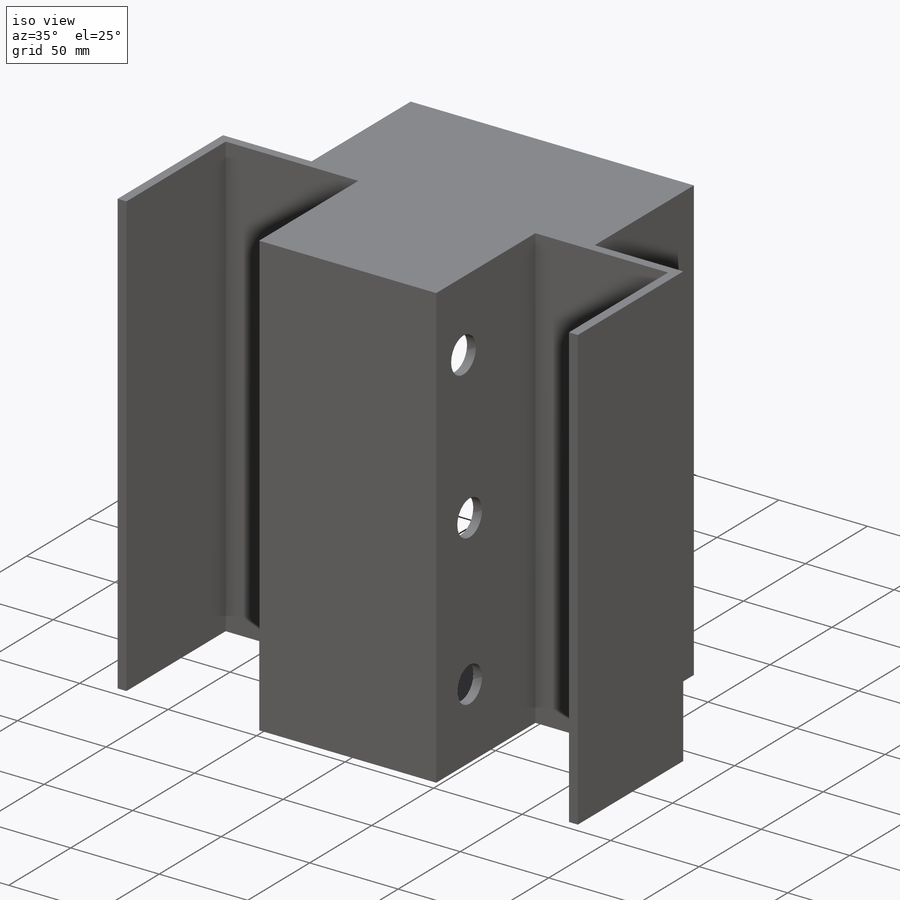
[diagram: iso view]
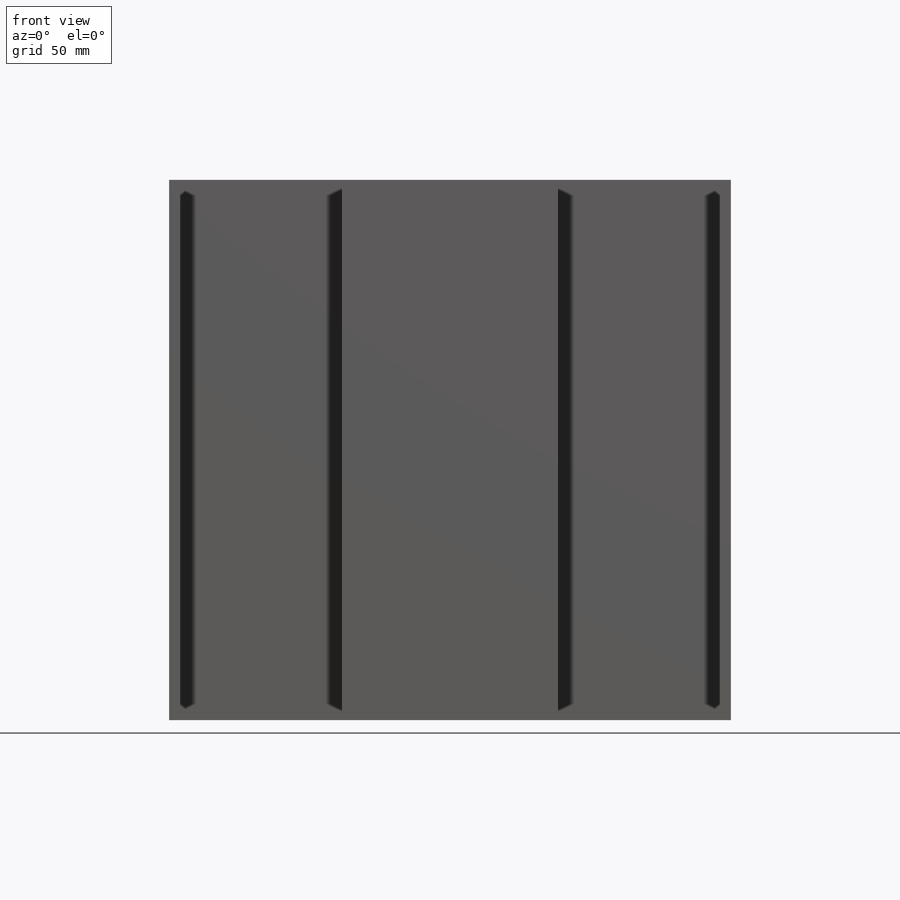
[diagram: front view]
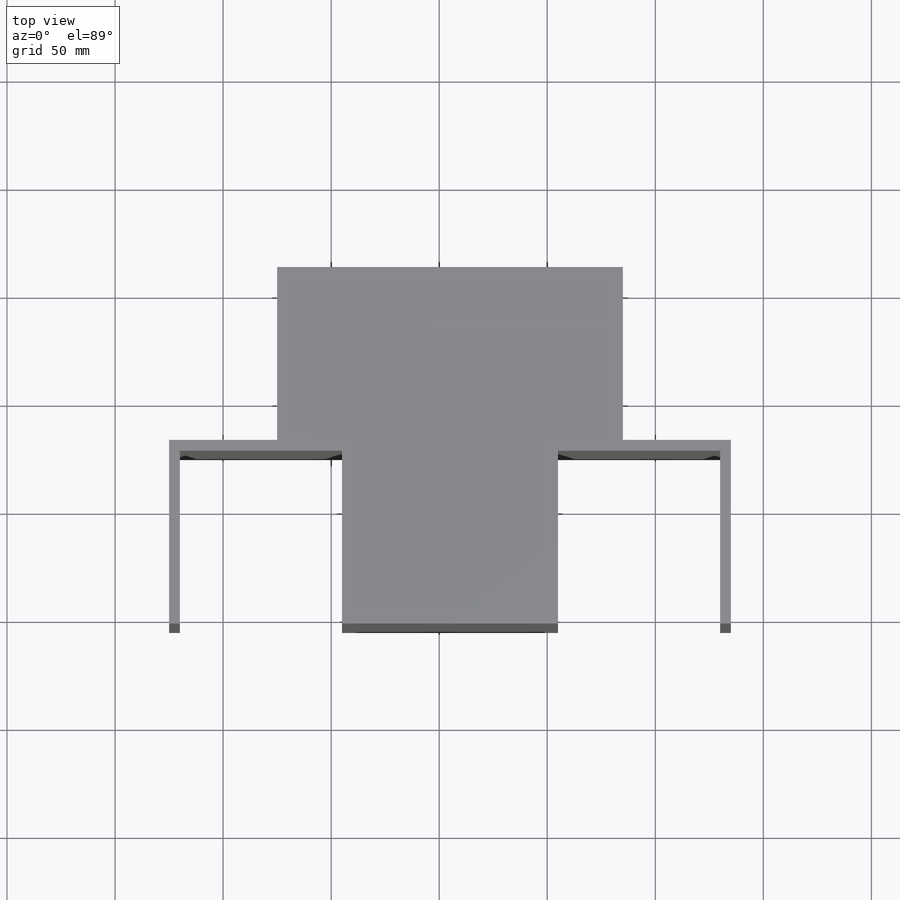
[diagram: top view]
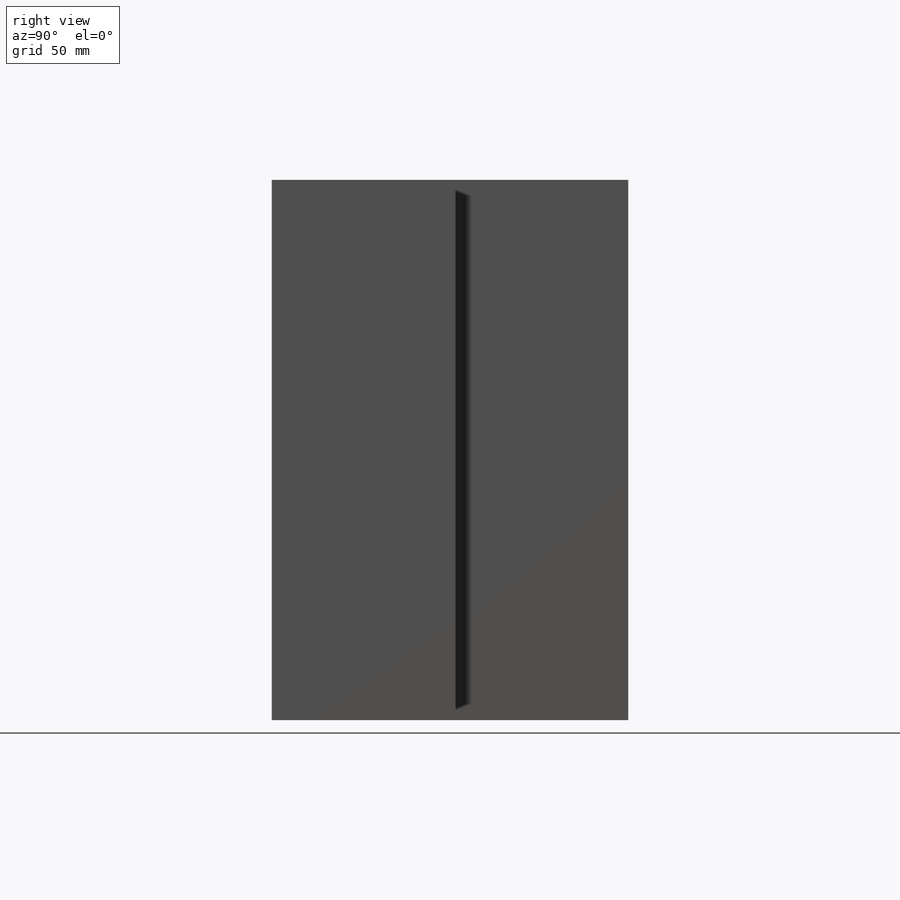
[diagram: right view]
SOLIDWORKS PART (.sldprt)
format: sldprt  version: not decoded by parser v0  size: 319,488 bytes
history: native  units: mm
features: sketch x12, extrude x7, plane x3, material x1, cut_extrude x1, mirror x1 (+9 scaffold rows collapsed)
feature tree (34):
  scaffold x9  (default folders/planes/origin — collapsed)
  material  "Matériau <non spécifié>"
  plane  "Plan de face"
  plane  "Plan de dessus"
  plane  "Plan de droite"
  sketch  "Esquisse1"  dims[D1=250.0mm D2=45.0mm]
  extrude  "Boss.-Extru.1"  Depth=5mm
  sketch  "Esquisse2"  dims[D1=80.0mm]
  extrude  "Boss.-Extru.2"  Depth=5mm
  sketch  "Esquisse4"  dims[D1=250.0mm D2=80.0mm]
  extrude  "Boss.-Extru.4"  Depth=5mm
  sketch  "Esquisse5"
  extrude  "Boss.-Extru.5"  Depth=5mm
  sketch  "Esquisse6"  dims[c1.D4=70.0mm c1.D5=70.0mm c1.D6=70.0mm c1.D9=20.0mm c1.D10=20.0mm c1.D11=20.0mm c1.D1=40.0mm c1.D2=40.0mm c1.D3=95.0mm c1.D7=27.0mm c1.D8=22.0mm c2.D2=125.0mm c2.D3=40.0mm c2.D12=40.0mm]
  cut_extrude  "Enlèv. mat.-Extru.1"  Depth=5mm
  sketch  "Esquisse7"  dims[D1=50.0mm D2=50.0mm D7=10.0mm D8=10.0mm D3=15.0mm D4=15.0mm D5=15.0mm D6=15.0mm]
  sketch  "Esquisse8"  dims[D1=50.0mm D2=5.0mm]
  extrude  "Boss.-Extru.6"  Depth=80mm
  sketch  "Esquisse9"  dims[c1.D1=40.0mm c1.D2=35.0mm c2.D1=40.0mm c2.D2=40.0mm c2.D3=40.0mm c2.D5=40.0mm c2.D6=40.0mm c3.D3=40.0mm c3.D4=40.0mm c3.D7=40.0mm c3.D8=40.0mm c4.D3=90.0mm c4.D4=50.0mm c5.D3=50.0mm c5.D5=30.0mm c5.D6=30.0mm c6.D5=55.0mm c6.D6=55.0mm c6.D7=25.0mm c6.D8=25.0mm]
  mirror  "Symétrie2"
  sketch  "Esquisse3D1"
  extrude  "Boss.-Extru.7"  Depth=5mm
  sketch  "Esquisse3D2"
  sketch  "Esquisse3D3"
  extrude  "Boss.-Extru.9"  Depth=5mm
  sketch  "Esquisse10"
decode coverage: 15 of 21 modeling features carry decoded parameters
note: suppression state not decoded; provenance and decode notes live in map.json
